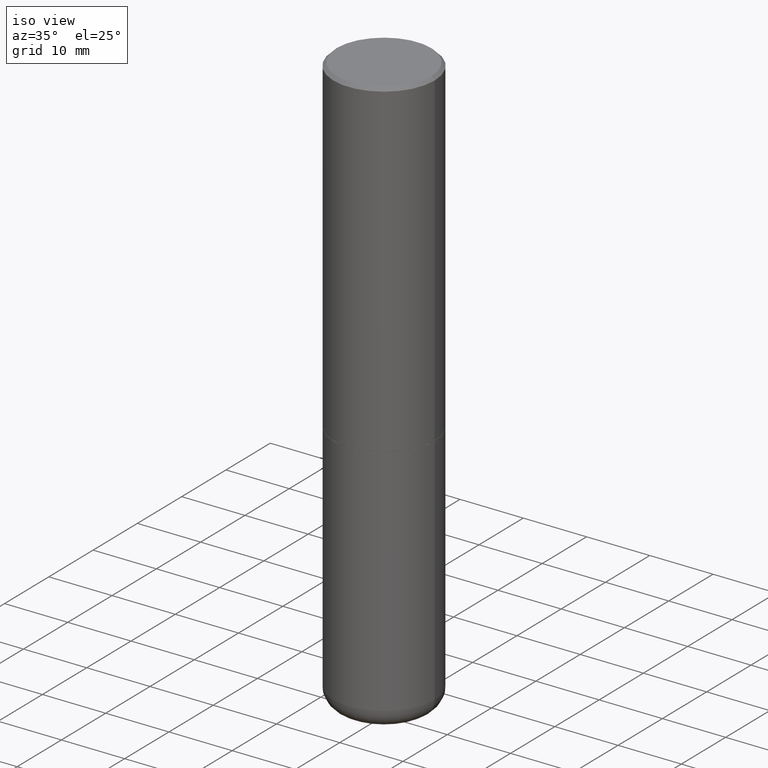
[diagram: clean part render]
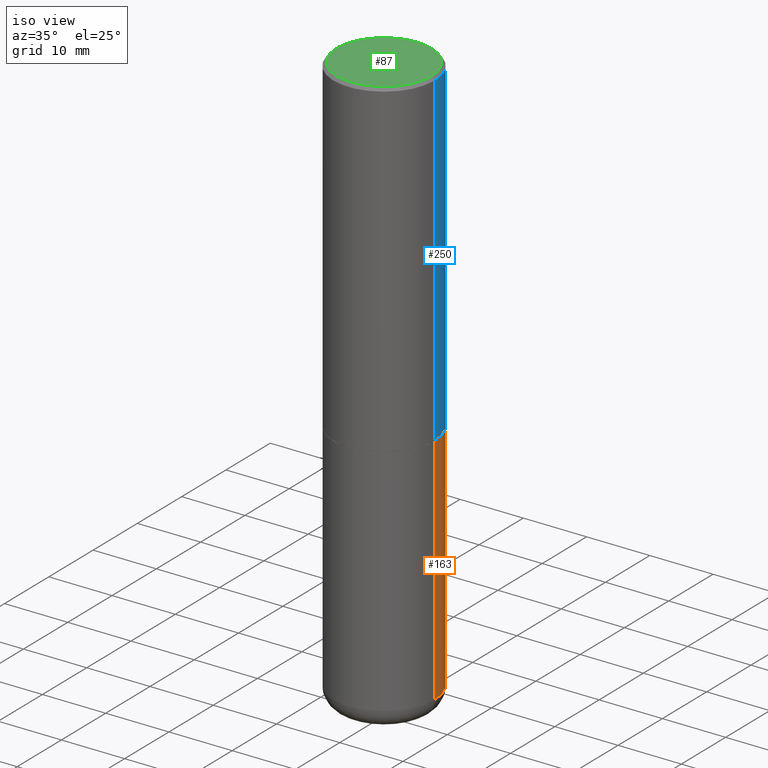
[diagram: same view with three faces highlighted in distinct colors, each labeled with its STEP entity id]
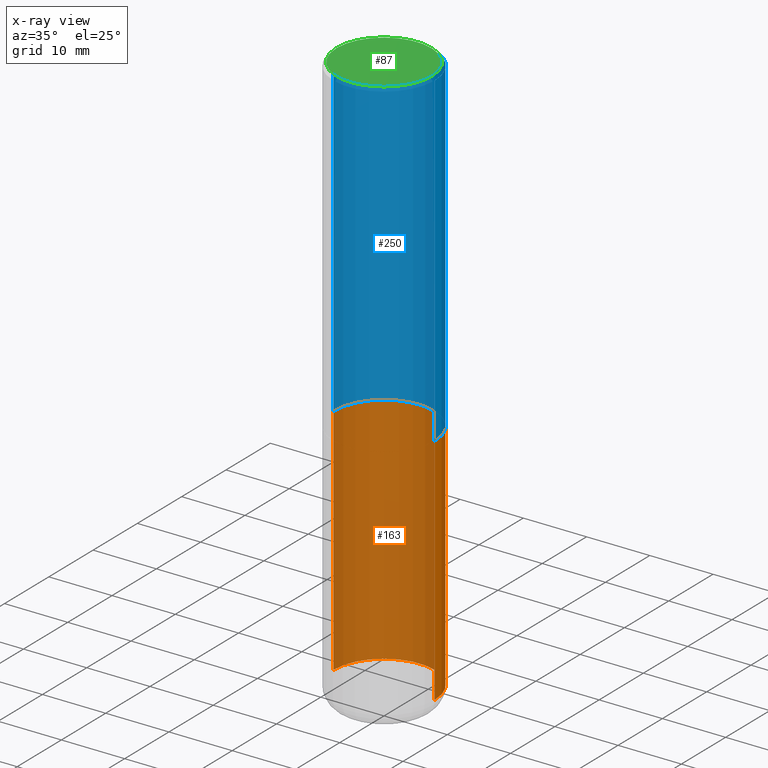
[diagram: x-ray of the same camera — body ghosted, the three highlighted faces saturated]
A machine part, iso view with three faces highlighted in distinct colors.
The next image is the same camera in x-ray (body ghosted, the three faces saturated) — at least one of them is partly hidden behind the body in this view.
Their STEP definitions:

[orange] entity #163 — the highlighted cylindrical surface (partial cylindrical patch) has radius 7.9997 mm, axis along (-0, 0, 1).
#3 = AXIS2_PLACEMENT_3D ( 'NONE', #376, #17, #238 ) ;
#13 = EDGE_CURVE ( 'NONE', #392, #164, #109, .T. ) ;
#17 = DIRECTION ( 'NONE',  ( -2.445468806185136597E-29, 3.491481338843145583E-15, 1.000000000000000000 ) ) ;
#39 = ORIENTED_EDGE ( 'NONE', *, *, #13, .T. ) ;
#65 = DIRECTION ( 'NONE',  ( 1.000000000000000000, -6.982962677686263555E-15, 0.000000000000000000 ) ) ;
#77 = LINE ( 'NONE', #234, #298 ) ;
#80 = VECTOR ( 'NONE', #231, 39.37007874015748143 ) ;
#83 = CARTESIAN_POINT ( 'NONE',  ( -0.3149500000000000077, -7.452926683749657046E-15, -2.047199999999999687 ) ) ;
#109 = LINE ( 'NONE', #116, #80 ) ;
#116 = CARTESIAN_POINT ( 'NONE',  ( -0.3149500000000000077, 2.237854346276435590E-15, -1.549218606675782676E-29 ) ) ;
#121 = EDGE_CURVE ( 'NONE', #137, #355, #77, .T. ) ;
#133 = FACE_OUTER_BOUND ( 'NONE', #201, .T. ) ;
#137 = VERTEX_POINT ( 'NONE', #334 ) ;
#163 = ADVANCED_FACE ( 'NONE', ( #133 ), #311, .T. ) ;
#164 = VERTEX_POINT ( 'NONE', #83 ) ;
#185 = AXIS2_PLACEMENT_3D ( 'NONE', #312, #416, #411 ) ;
#201 = EDGE_LOOP ( 'NONE', ( #324, #39, #393, #248 ) ) ;
#211 = CARTESIAN_POINT ( 'NONE',  ( 0.3149500000000000077, -9.347044692216978073E-15, -2.047199999999999687 ) ) ;
#218 = CARTESIAN_POINT ( 'NONE',  ( 8.568678149992099474E-29, -1.223380146317249786E-14, -3.503899999999999793 ) ) ;
#231 = DIRECTION ( 'NONE',  ( -2.445468806185136877E-29, 3.491481338843145188E-15, 1.000000000000000000 ) ) ;
#234 = CARTESIAN_POINT ( 'NONE',  ( 0.3149500000000000077, -2.199284095337289871E-15, 1.535751875536930130E-29 ) ) ;
#238 = DIRECTION ( 'NONE',  ( 1.000000000000000000, -6.982962677686266711E-15, 4.876176775795936353E-29 ) ) ;
#246 = CIRCLE ( 'NONE', #185, 0.3149500000000000077 ) ;
#248 = ORIENTED_EDGE ( 'NONE', *, *, #121, .F. ) ;
#298 = VECTOR ( 'NONE', #371, 39.37007874015748143 ) ;
#307 = CIRCLE ( 'NONE', #394, 0.3149500000000000077 ) ;
#311 = CYLINDRICAL_SURFACE ( 'NONE', #3, 0.3149500000000000077 ) ;
#312 = CARTESIAN_POINT ( 'NONE',  ( 5.006363740022211120E-29, -7.147760596879686624E-15, -2.047199999999999687 ) ) ;
#324 = ORIENTED_EDGE ( 'NONE', *, *, #403, .T. ) ;
#334 = CARTESIAN_POINT ( 'NONE',  ( 0.3149500000000000077, -1.443308555850978615E-14, -3.503899999999999793 ) ) ;
#350 = CARTESIAN_POINT ( 'NONE',  ( -0.3149500000000000077, -9.995947116896063452E-15, -3.503899999999999793 ) ) ;
#355 = VERTEX_POINT ( 'NONE', #211 ) ;
#358 = EDGE_CURVE ( 'NONE', #355, #164, #246, .T. ) ;
#359 = DIRECTION ( 'NONE',  ( -2.445468806185136597E-29, 3.491481338843145583E-15, 1.000000000000000000 ) ) ;
#371 = DIRECTION ( 'NONE',  ( -2.445468806185136877E-29, 3.491481338843145188E-15, 1.000000000000000000 ) ) ;
#376 = CARTESIAN_POINT ( 'NONE',  ( 0.000000000000000000, 0.000000000000000000, 0.000000000000000000 ) ) ;
#392 = VERTEX_POINT ( 'NONE', #350 ) ;
#393 = ORIENTED_EDGE ( 'NONE', *, *, #358, .F. ) ;
#394 = AXIS2_PLACEMENT_3D ( 'NONE', #218, #359, #65 ) ;
#403 = EDGE_CURVE ( 'NONE', #137, #392, #307, .T. ) ;
#411 = DIRECTION ( 'NONE',  ( 1.000000000000000000, -6.982962677686269866E-15, 0.000000000000000000 ) ) ;
#416 = DIRECTION ( 'NONE',  ( -2.445468806185136597E-29, 3.491481338843145583E-15, 1.000000000000000000 ) ) ;

[blue] entity #250 — the highlighted cylindrical surface (partial cylindrical patch) has radius 7.9997 mm, axis along (-0, 0, 1).
#25 = LINE ( 'NONE', #27, #52 ) ;
#27 = CARTESIAN_POINT ( 'NONE',  ( 0.3149500000000001743, -2.199284095337290660E-15, 1.535751875536930690E-29 ) ) ;
#32 = ORIENTED_EDGE ( 'NONE', *, *, #391, .F. ) ;
#33 = EDGE_LOOP ( 'NONE', ( #330, #332, #32, #130 ) ) ;
#51 = DIRECTION ( 'NONE',  ( 1.000000000000000000, -6.982962677686265922E-15, 4.876176775795935232E-29 ) ) ;
#52 = VECTOR ( 'NONE', #146, 39.37007874015748143 ) ;
#54 = CARTESIAN_POINT ( 'NONE',  ( 0.3149499999999999522, -2.230543471175006661E-15, -0.02000000000000006981 ) ) ;
#81 = CIRCLE ( 'NONE', #336, 0.3149499999999999522 ) ;
#90 = DIRECTION ( 'NONE',  ( -2.445468806185136597E-29, 3.491481338843145583E-15, 1.000000000000000000 ) ) ;
#98 = VERTEX_POINT ( 'NONE', #110 ) ;
#110 = CARTESIAN_POINT ( 'NONE',  ( -0.3149500000000002853, -1.369195024882414317E-15, -2.046199999999999797 ) ) ;
#117 = CYLINDRICAL_SURFACE ( 'NONE', #282, 0.3149500000000001743 ) ;
#120 = CARTESIAN_POINT ( 'NONE',  ( 0.3149500000000002853, -9.343553210878135066E-15, -2.046199999999999797 ) ) ;
#130 = ORIENTED_EDGE ( 'NONE', *, *, #256, .F. ) ;
#146 = DIRECTION ( 'NONE',  ( -2.445468806185136877E-29, 3.491481338843145188E-15, 1.000000000000000000 ) ) ;
#152 = CIRCLE ( 'NONE', #196, 0.3149500000000002853 ) ;
#170 = EDGE_CURVE ( 'NONE', #98, #228, #198, .T. ) ;
#196 = AXIS2_PLACEMENT_3D ( 'NONE', #243, #314, #318 ) ;
#198 = LINE ( 'NONE', #303, #325 ) ;
#213 = DIRECTION ( 'NONE',  ( 1.000000000000000000, -6.982962677686266711E-15, 0.000000000000000000 ) ) ;
#228 = VERTEX_POINT ( 'NONE', #269 ) ;
#243 = CARTESIAN_POINT ( 'NONE',  ( 5.003918271216025517E-29, -7.144269115540843617E-15, -2.046199999999999797 ) ) ;
#250 = ADVANCED_FACE ( 'NONE', ( #386 ), #117, .T. ) ;
#256 = EDGE_CURVE ( 'NONE', #365, #294, #25, .T. ) ;
#269 = CARTESIAN_POINT ( 'NONE',  ( -0.3149499999999999522, 2.129454468560426178E-15, -0.02000000000000006981 ) ) ;
#275 = DIRECTION ( 'NONE',  ( -2.445468806185136597E-29, 3.491481338843145583E-15, 1.000000000000000000 ) ) ;
#282 = AXIS2_PLACEMENT_3D ( 'NONE', #347, #275, #51 ) ;
#294 = VERTEX_POINT ( 'NONE', #54 ) ;
#303 = CARTESIAN_POINT ( 'NONE',  ( -0.3149500000000001743, 2.237854346276436774E-15, -1.549218606675783237E-29 ) ) ;
#306 = DIRECTION ( 'NONE',  ( -2.445468806185136877E-29, 3.491481338843145188E-15, 1.000000000000000000 ) ) ;
#310 = EDGE_CURVE ( 'NONE', #365, #98, #152, .T. ) ;
#314 = DIRECTION ( 'NONE',  ( -2.445468806185136597E-29, 3.491481338843145583E-15, 1.000000000000000000 ) ) ;
#318 = DIRECTION ( 'NONE',  ( 1.000000000000000000, -6.982962677686267499E-15, 0.000000000000000000 ) ) ;
#325 = VECTOR ( 'NONE', #306, 39.37007874015748143 ) ;
#330 = ORIENTED_EDGE ( 'NONE', *, *, #310, .T. ) ;
#332 = ORIENTED_EDGE ( 'NONE', *, *, #170, .T. ) ;
#336 = AXIS2_PLACEMENT_3D ( 'NONE', #384, #90, #213 ) ;
#347 = CARTESIAN_POINT ( 'NONE',  ( 0.000000000000000000, 0.000000000000000000, 0.000000000000000000 ) ) ;
#365 = VERTEX_POINT ( 'NONE', #120 ) ;
#384 = CARTESIAN_POINT ( 'NONE',  ( 4.890937612370289799E-31, -6.982962677686315028E-17, -0.02000000000000006981 ) ) ;
#386 = FACE_OUTER_BOUND ( 'NONE', #33, .T. ) ;
#391 = EDGE_CURVE ( 'NONE', #294, #228, #81, .T. ) ;

[green] entity #87 — the highlighted planar face has unit normal (0, -0, -1).
#21 = AXIS2_PLACEMENT_3D ( 'NONE', #200, #373, #343 ) ;
#50 = CARTESIAN_POINT ( 'NONE',  ( -4.488561081641444621E-45, 6.408475632635922878E-31, 1.835460370743176819E-16 ) ) ;
#57 = AXIS2_PLACEMENT_3D ( 'NONE', #404, #264, #73 ) ;
#60 = VERTEX_POINT ( 'NONE', #283 ) ;
#73 = DIRECTION ( 'NONE',  ( -1.000000000000000000, 6.982962677686265922E-15, -4.876176775795935793E-29 ) ) ;
#87 = ADVANCED_FACE ( 'NONE', ( #169 ), #301, .F. ) ;
#103 = VERTEX_POINT ( 'NONE', #134 ) ;
#134 = CARTESIAN_POINT ( 'NONE',  ( 0.2949499999999997679, -2.127023677808858891E-15, 1.835460370743323251E-16 ) ) ;
#169 = FACE_OUTER_BOUND ( 'NONE', #257, .T. ) ;
#200 = CARTESIAN_POINT ( 'NONE',  ( -4.488561081641444621E-45, 6.408475632635922878E-31, 1.835460370743176819E-16 ) ) ;
#212 = EDGE_CURVE ( 'NONE', #60, #103, #216, .T. ) ;
#216 = CIRCLE ( 'NONE', #21, 0.2949499999999997679 ) ;
#249 = DIRECTION ( 'NONE',  ( -2.445468806185136597E-29, 3.491481338843145583E-15, 1.000000000000000000 ) ) ;
#253 = CIRCLE ( 'NONE', #289, 0.2949499999999997679 ) ;
#257 = EDGE_LOOP ( 'NONE', ( #385, #287 ) ) ;
#264 = DIRECTION ( 'NONE',  ( 2.438088387897960049E-29, -3.491481338843145188E-15, -1.000000000000000000 ) ) ;
#277 = EDGE_CURVE ( 'NONE', #103, #60, #253, .T. ) ;
#283 = CARTESIAN_POINT ( 'NONE',  ( -0.2949499999999997679, 2.094539655171994924E-15, 1.835460370743031619E-16 ) ) ;
#287 = ORIENTED_EDGE ( 'NONE', *, *, #277, .T. ) ;
#289 = AXIS2_PLACEMENT_3D ( 'NONE', #50, #249, #316 ) ;
#301 = PLANE ( 'NONE',  #57 ) ;
#316 = DIRECTION ( 'NONE',  ( 1.000000000000000000, -6.982962677686265922E-15, 4.874125435057325556E-29 ) ) ;
#343 = DIRECTION ( 'NONE',  ( 1.000000000000000000, -6.982962677686265922E-15, 4.874125435057325556E-29 ) ) ;
#373 = DIRECTION ( 'NONE',  ( -2.445468806185136597E-29, 3.491481338843145583E-15, 1.000000000000000000 ) ) ;
#385 = ORIENTED_EDGE ( 'NONE', *, *, #212, .T. ) ;
#404 = CARTESIAN_POINT ( 'NONE',  ( 2.059624841783562486E-15, 0.2949499999999997679, -9.380394023546260134E-16 ) ) ;